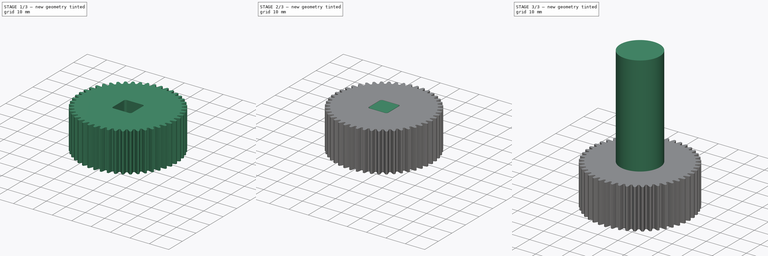
[diagram: build sequence overview — one tinted view per stage of 3, left to right]
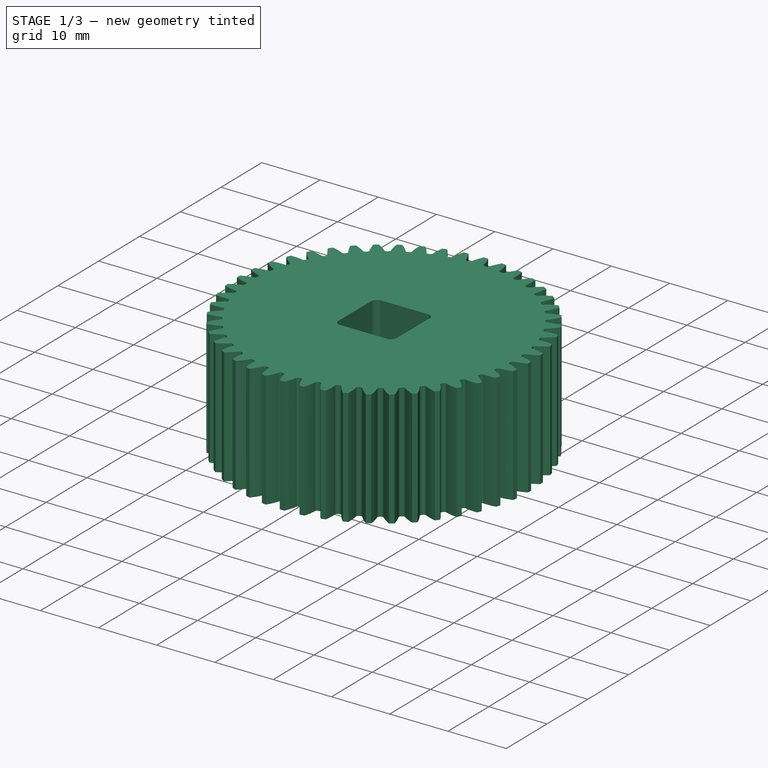
[diagram: stage 1 of 3 — iso view after this stage's code; geometry added in this stage tinted green]
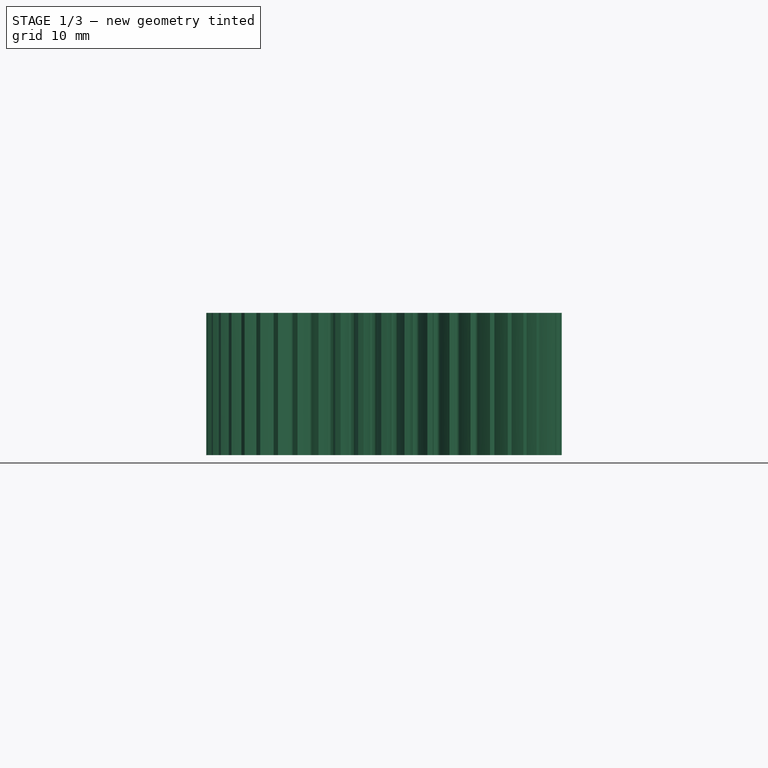
[diagram: stage 1 of 3 — front view after this stage's code; geometry added in this stage tinted green]
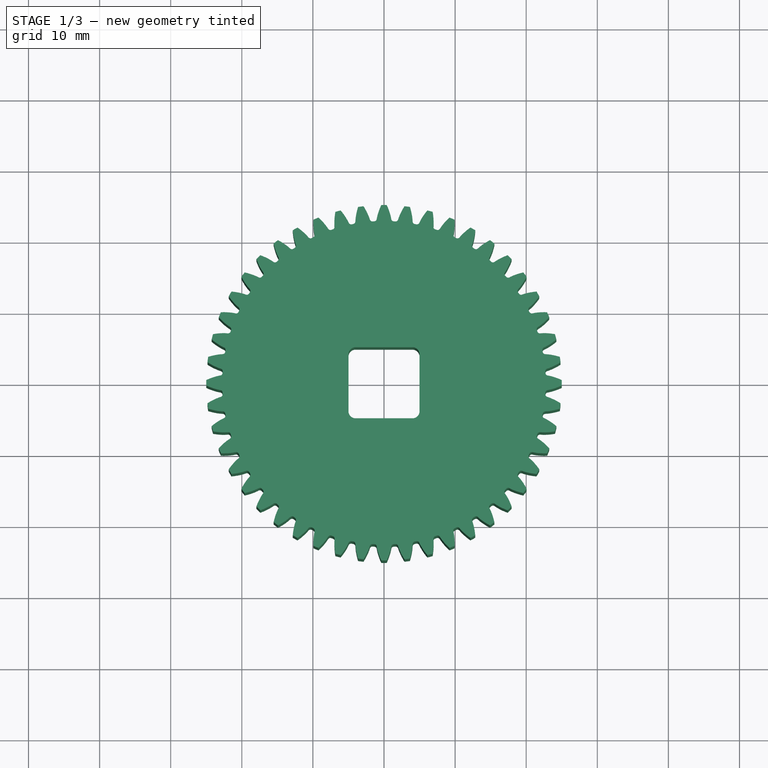
[diagram: stage 1 of 3 — top view after this stage's code; geometry added in this stage tinted green]
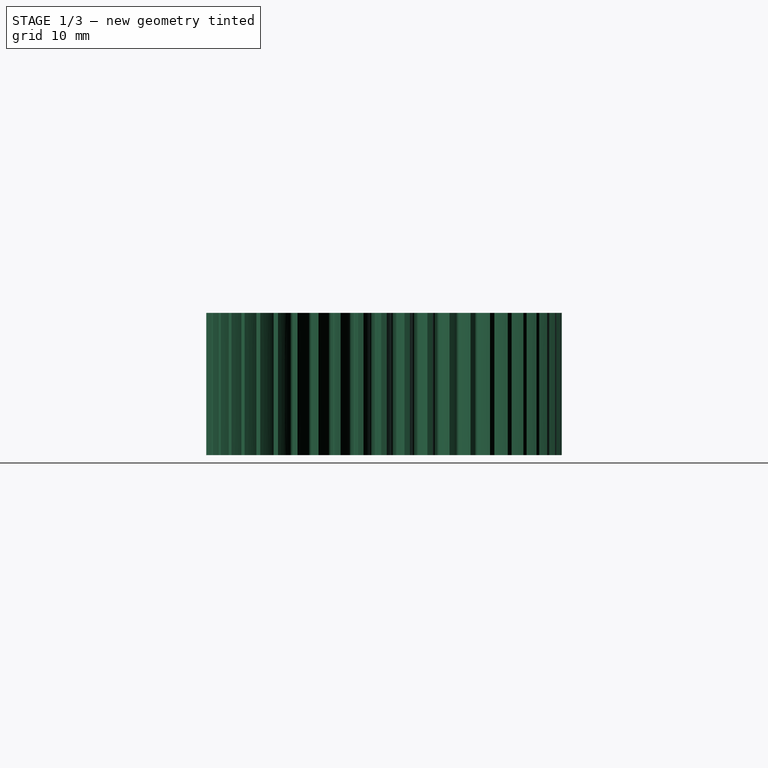
[diagram: stage 1 of 3 — right view after this stage's code; geometry added in this stage tinted green]
FCSTD DOCUMENT  (FreeCAD 1.1R40444 (Git))
Label: Gears
License: All rights reserved
LicenseURL: http://en.wikipedia.org/wiki/All_rights_reserved
objects: PartDesign::Pad×4, Sketcher::SketchObject×4, PartDesign::Body×3, App::Point×3, Part::Part2DObjectPython×2, PartDesign::ShapeBinder×2, PartDesign::Pocket×1
note: 30 computed .brp shape members not serialized (recipe doc carries the construction recipe); baked Part::Feature solids carry a one-line shape summary decoded from their .brp
EXTERNAL_REF file=Configuration.FCStd obj=Spreadsheet

FEATURE [PartDesign::Body] Body  label="MainGear"
  AllowCompound = false
  Group = -> [InvoluteGear,Pad]
  Origin = -> Origin
  Tip = -> Pad
FEATURE [PartDesign::Pad] Pad001
  Direction = (0,0,1)
  Length = 20
  Length2 = 10
  Profile = -> InvoluteGear002
  ReferenceAxis = -> InvoluteGear002 [N_Axis]
  Refine = true
  Suppressed = false
  Type = 0
  expr: Length = Configuration#<<Spreadsheet>>.gear_height
FEATURE [Sketcher::SketchObject] Sketch  label="ShaftMountInterface"
  ArcFitTolerance = 0
  ExternalTypes = [0]
  FullyConstrained = true
  MakeInternals = false
  expr: Constraints[26] = 1
  sketch-geometry (13):
    g0: LineSegment StartX=-4 StartY=-5 StartZ=0 EndX=4 EndY=-5 EndZ=0
    g1: LineSegment StartX=5 StartY=-4 StartZ=0 EndX=5 EndY=4 EndZ=0
    g2: LineSegment StartX=4 StartY=5 StartZ=0 EndX=-4 EndY=5 EndZ=0
    g3: LineSegment StartX=-5 StartY=4 StartZ=0 EndX=-5 EndY=-4 EndZ=0
    g4: GeomPoint [constr] X=0 Y=0 Z=0
    g5: ArcOfCircle CenterX=-4 CenterY=4 CenterZ=0 NormalX=0 NormalY=0 NormalZ=1 AngleXU=0 Radius=1 StartAngle=1.5708 EndAngle=3.14159
    g6: GeomPoint [constr] X=-5 Y=5 Z=0
    g7: ArcOfCircle CenterX=4 CenterY=4 CenterZ=0 NormalX=0 NormalY=0 NormalZ=1 AngleXU=0 Radius=1 StartAngle=0 EndAngle=1.5708
    g8: GeomPoint [constr] X=5 Y=5 Z=0
    g9: ArcOfCircle CenterX=4 CenterY=-4 CenterZ=0 NormalX=0 NormalY=0 NormalZ=1 AngleXU=0 Radius=1 StartAngle=4.71239 EndAngle=6.28319
    g10: GeomPoint [constr] X=5 Y=-5 Z=0
    g11: ArcOfCircle CenterX=-4 CenterY=-4 CenterZ=0 NormalX=0 NormalY=0 NormalZ=1 AngleXU=0 Radius=1 StartAngle=3.14159 EndAngle=4.71239
    g12: GeomPoint [constr] X=-5 Y=-5 Z=0
  constraints (28):
    c: Horizontal(g0)
    c: Horizontal(g2)
    c: Vertical(g1)
    c: Vertical(g3)
    c: Symmetric(g8,g12,g4)
    c: Coincident(g4,g-1)
    c: PointOnObject(g6,g2)
    c: PointOnObject(g6,g3)
    c: Tangent(g2,g5) = -1.5708
    c: Tangent(g3,g5) = -1.5708
    c: PointOnObject(g8,g1)
    c: PointOnObject(g8,g2)
    c: Tangent(g1,g7) = -1.5708
    c: Tangent(g2,g7) = -1.5708
    c: PointOnObject(g10,g0)
    c: PointOnObject(g10,g1)
    c: Tangent(g0,g9) = -1.5708
    c: Tangent(g1,g9) = -1.5708
    c: PointOnObject(g12,g0)
    c: PointOnObject(g12,g3)
    c: Tangent(g0,g11) = -1.5708
    c: Tangent(g3,g11) = -1.5708
    c: Distance(g4,g2) = 5
    c: Equal(g11,g5)
    c: Equal(g5,g7)
    c: Equal(g7,g9)
    c: Radius(g5) = 1
    c: Equal(g3,g2)
FEATURE [PartDesign::ShapeBinder] ShapeBinder
  Support = -> [Sketch]
  Suppressed = false
  TraceSupport = false
FEATURE [PartDesign::Pocket] Pocket
  BaseFeature = -> Pad001
  Direction = (0,0,-1)
  Length = 5
  Length2 = 5
  Profile = -> ShapeBinder
  Refine = true
  Reversed = true
  Suppressed = false
  Type = 1
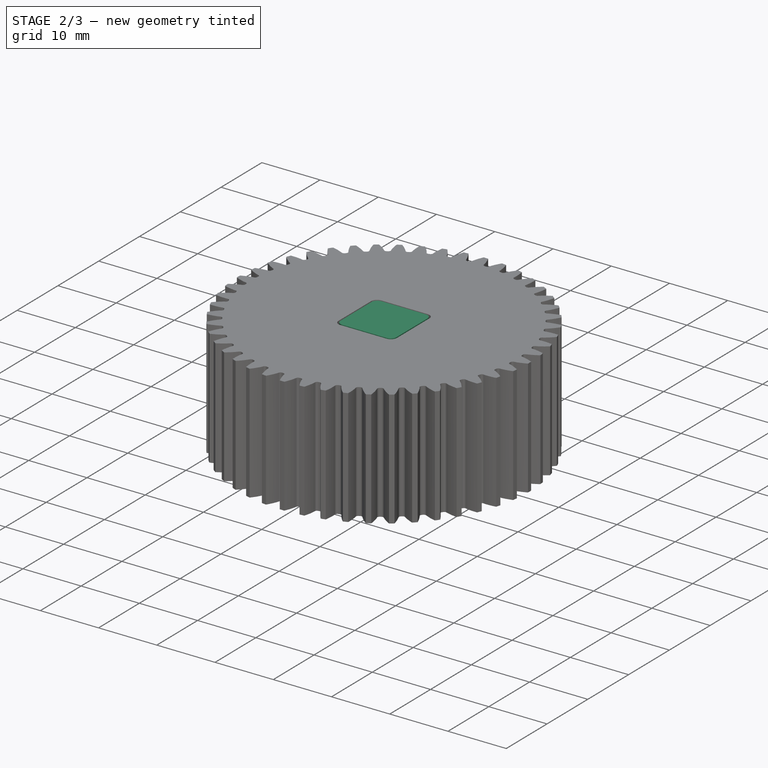
[diagram: stage 2 of 3 — iso view after this stage's code; geometry added in this stage tinted green]
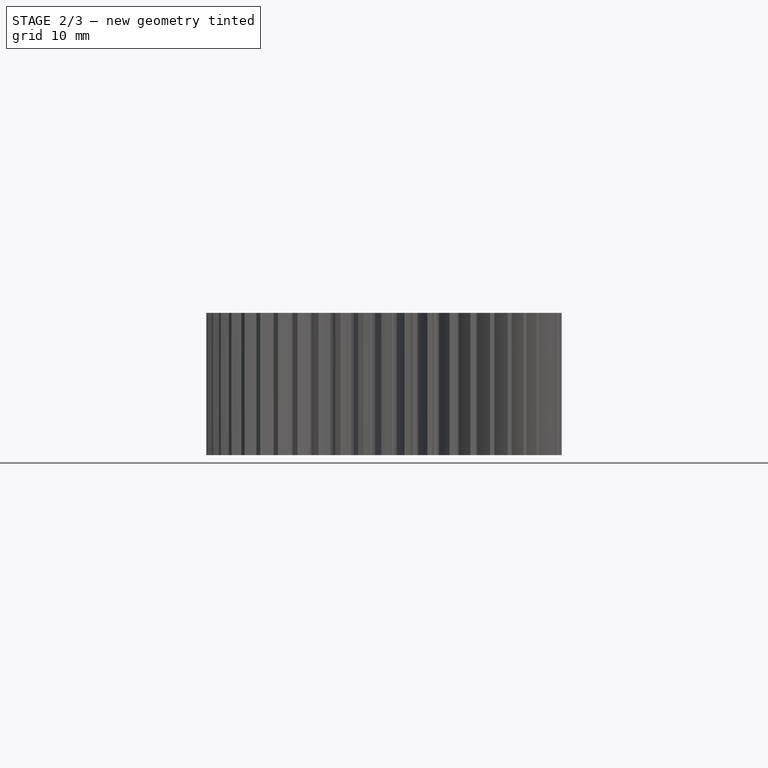
[diagram: stage 2 of 3 — front view after this stage's code; geometry added in this stage tinted green]
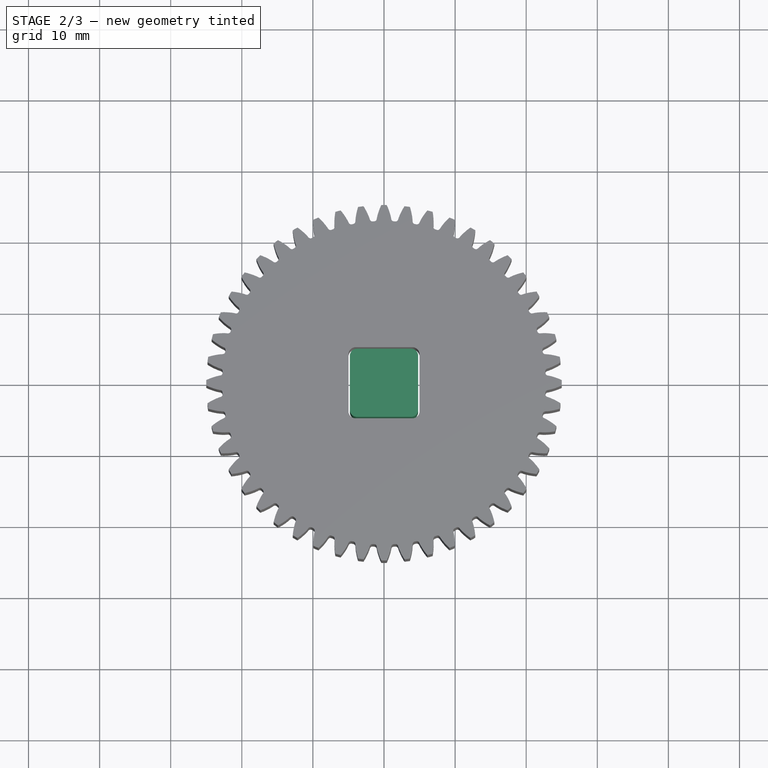
[diagram: stage 2 of 3 — top view after this stage's code; geometry added in this stage tinted green]
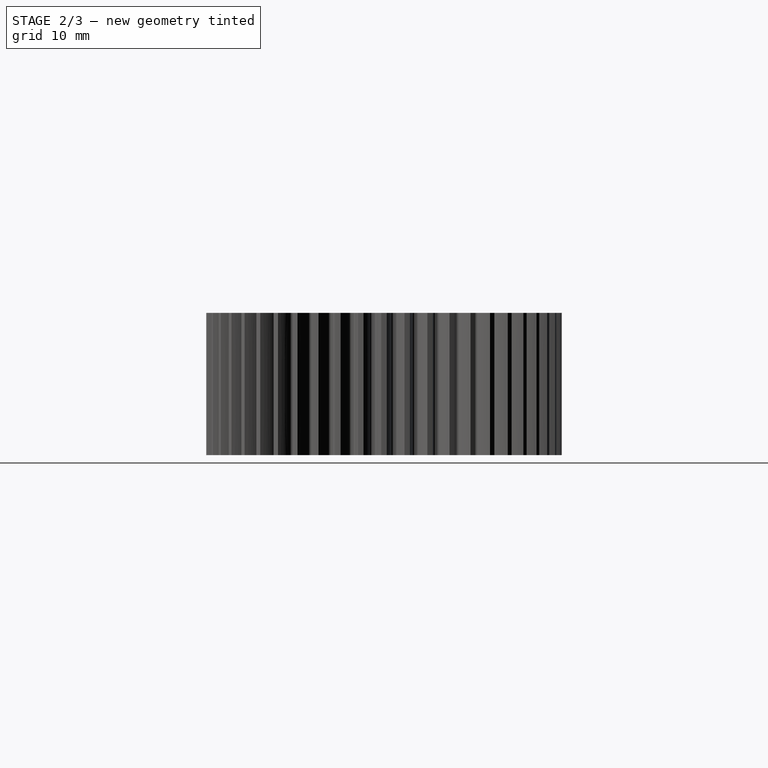
[diagram: stage 2 of 3 — right view after this stage's code; geometry added in this stage tinted green]
FEATURE [PartDesign::ShapeBinder] ShapeBinder001
  Support = -> [Sketch]
  Suppressed = false
  TraceSupport = false
FEATURE [Sketcher::SketchObject] Sketch001
  ArcFitTolerance = 0
  AttachmentSupport = -> [Pocket]
  ExternalGeometry = -> [ShapeBinder001]
  ExternalTypes = [0]
  FullyConstrained = true
  MakeInternals = false
  MapMode = 5
  Placement = pos=(0,0,0) rot=(1,0,0;3.14159rad)
  sketch-geometry (15):
    g0: LineSegment StartX=4.8 StartY=-3.8 StartZ=0 EndX=4.8 EndY=3.8 EndZ=0
    g1: LineSegment StartX=3.8 StartY=4.8 StartZ=0 EndX=-3.8 EndY=4.8 EndZ=0
    g2: LineSegment StartX=-4.8 StartY=3.8 StartZ=0 EndX=-4.8 EndY=-3.8 EndZ=0
    g3: LineSegment StartX=-3.8 StartY=-4.8 StartZ=0 EndX=3.8 EndY=-4.8 EndZ=0
    g4: GeomPoint [constr] X=0 Y=0 Z=0
    g5: ArcOfCircle CenterX=-3.8 CenterY=3.8 CenterZ=0 NormalX=0 NormalY=0 NormalZ=1 AngleXU=0 Radius=1 StartAngle=1.5708 EndAngle=3.14159
    g6: GeomPoint [constr] X=-4.8 Y=4.8 Z=0
    g7: ArcOfCircle CenterX=3.8 CenterY=3.8 CenterZ=0 NormalX=0 NormalY=0 NormalZ=1 AngleXU=0 Radius=1 StartAngle=0 EndAngle=1.5708
    g8: GeomPoint [constr] X=4.8 Y=4.8 Z=0
    g9: ArcOfCircle CenterX=3.8 CenterY=-3.8 CenterZ=0 NormalX=0 NormalY=0 NormalZ=1 AngleXU=0 Radius=1 StartAngle=4.71239 EndAngle=6.28319
    g10: GeomPoint [constr] X=4.8 Y=-4.8 Z=0
    g11: ArcOfCircle CenterX=-3.8 CenterY=-3.8 CenterZ=0 NormalX=0 NormalY=0 NormalZ=1 AngleXU=0 Radius=1 StartAngle=3.14159 EndAngle=4.71239
    g12: GeomPoint [constr] X=-4.8 Y=-4.8 Z=0
    g13: LineSegment [constr] StartX=-5e-16 StartY=5 StartZ=0 EndX=1e-16 EndY=4.8 EndZ=0
    g14: LineSegment [constr] StartX=4.8 StartY=0 StartZ=0 EndX=5 EndY=2e-16 EndZ=0
  constraints (33):
    c: Vertical(g0)
    c: Vertical(g2)
    c: Horizontal(g1)
    c: Horizontal(g3)
    c: Symmetric(g6,g10,g4)
    c: Coincident(g4,g-1)
    c: PointOnObject(g6,g1)
    c: PointOnObject(g6,g2)
    c: Tangent(g1,g5) = -1.5708
    c: Tangent(g2,g5) = -1.5708
    c: PointOnObject(g8,g0)
    c: PointOnObject(g8,g1)
    c: Tangent(g0,g7) = -1.5708
    c: Tangent(g1,g7) = -1.5708
    c: PointOnObject(g10,g0)
    c: PointOnObject(g10,g3)
    c: Tangent(g0,g9) = -1.5708
    c: Tangent(g3,g9) = -1.5708
    c: PointOnObject(g12,g2)
    c: PointOnObject(g12,g3)
    c: Tangent(g2,g11) = -1.5708
    c: Tangent(g3,g11) = -1.5708
    c: Equal(g11,g-6)
    c: Equal(g5,g-4)
    c: Equal(g7,g-10)
    c: Equal(g1,g0)
    c: Distance(g-9,g0) = 0.2
    c: Symmetric(g-3,g-3,g13)
    c: Symmetric(g1,g1,g13)
    c: PointOnObject(g14,g-1)
    c: Symmetric(g-9,g-9,g14)
    c: Equal(g14,g13)
    c: PointOnObject(g14,g0)
FEATURE [PartDesign::Pad] Pad002
  Direction = (0,0,1)
  Length = 20
  Length2 = 10
  Profile = -> Sketch001
  ReferenceAxis = -> Sketch001 [N_Axis]
  Refine = true
  Suppressed = false
  Type = 0
  expr: Length = Configuration#Spreadsheet.gear_height
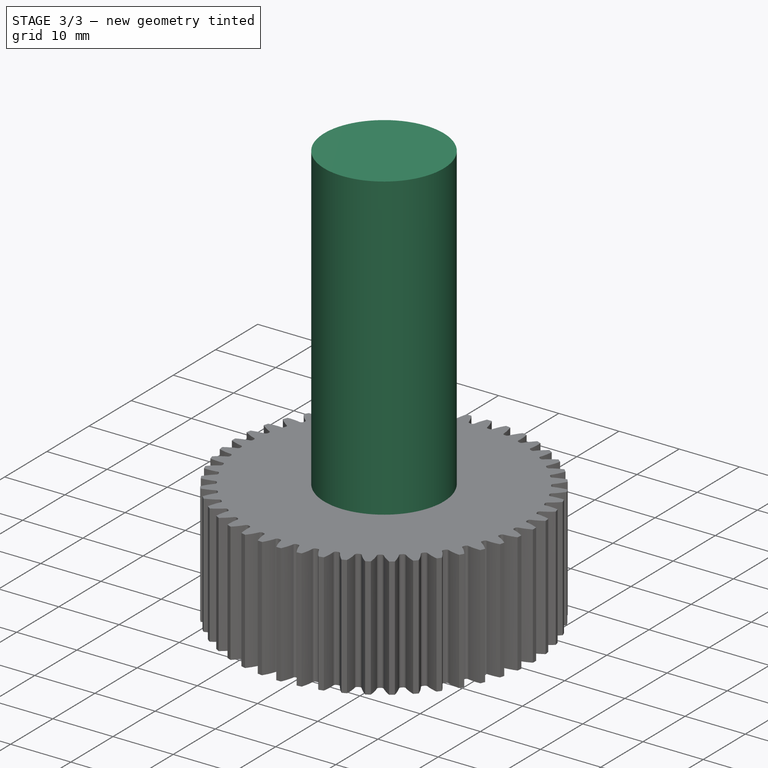
[diagram: stage 3 of 3 — iso view after this stage's code; geometry added in this stage tinted green]
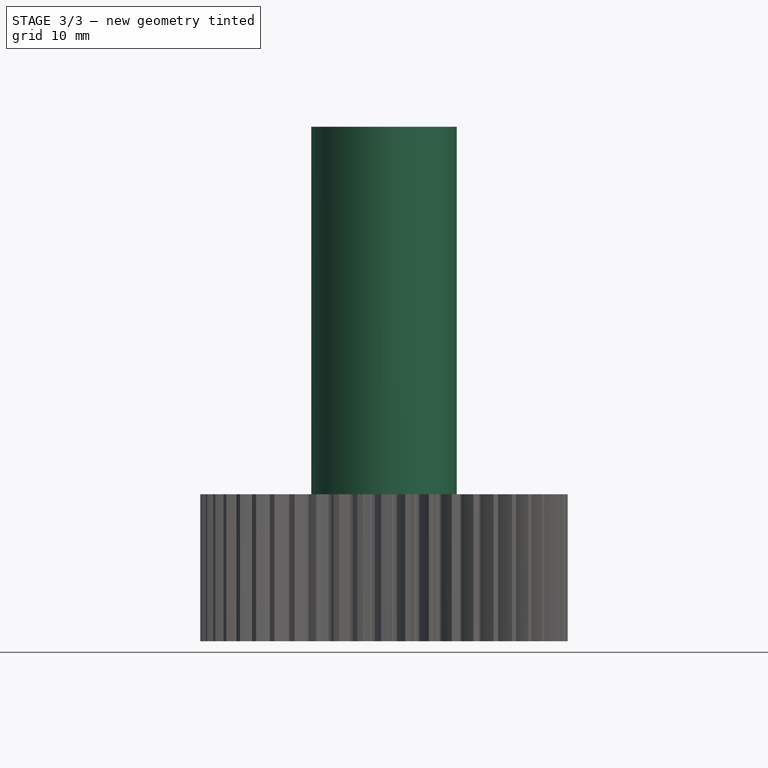
[diagram: stage 3 of 3 — front view after this stage's code; geometry added in this stage tinted green]
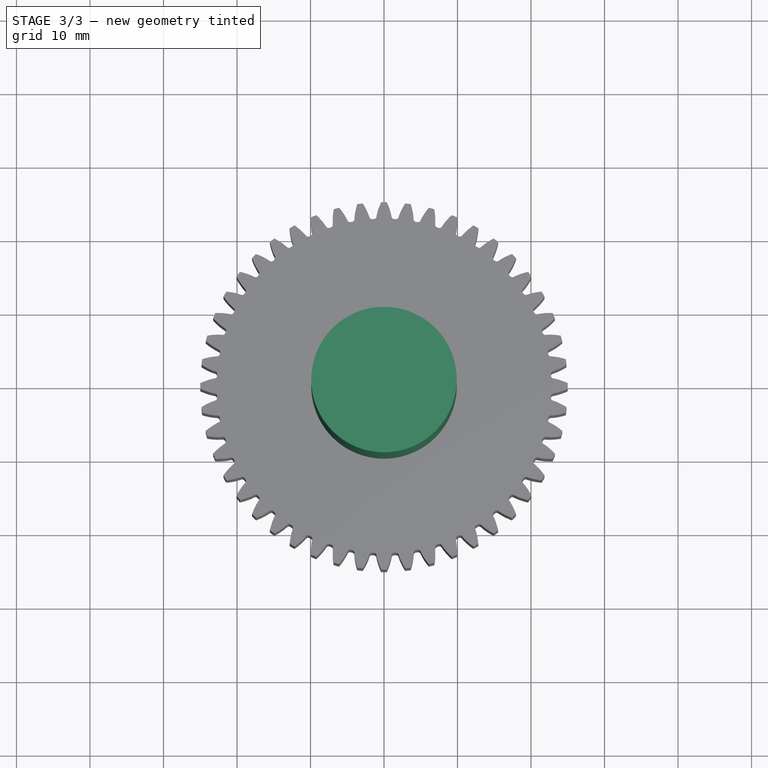
[diagram: stage 3 of 3 — top view after this stage's code; geometry added in this stage tinted green]
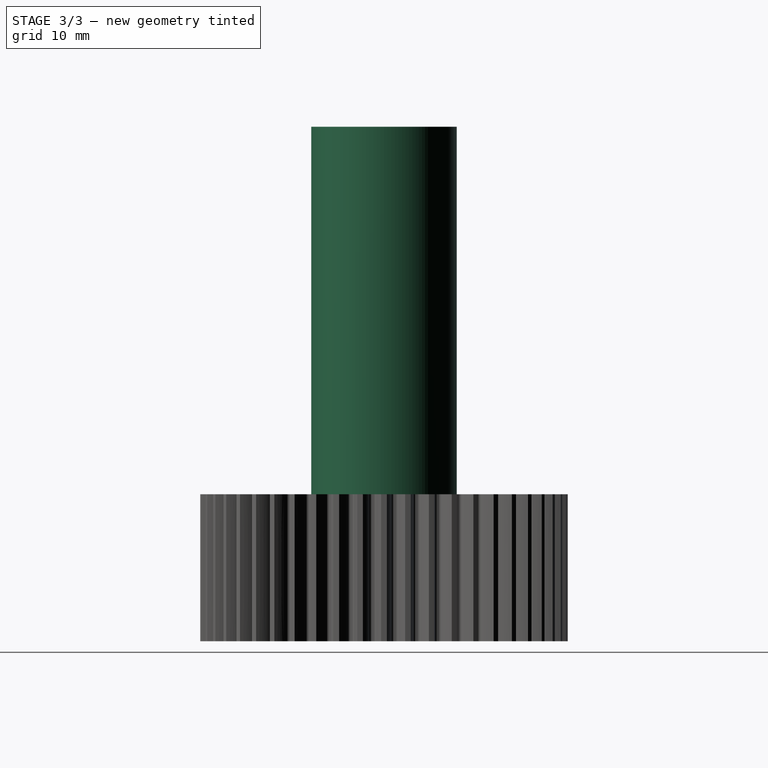
[diagram: stage 3 of 3 — right view after this stage's code; geometry added in this stage tinted green]
FEATURE [Part::Part2DObjectPython] InvoluteGear  # Draft 2D object (typed FeaturePython)
  AddendumCoefficient = 1
  DedendumCoefficient = 1.25
  ExternalGear = true
  HighPrecision = true
  Modules = 1
  NumberOfTeeth = 24
  PressureAngle = 20
  ProfileShiftCoefficient = 0
  RootFilletCoefficient = 0.38
  expr: Modules = Configuration#Spreadsheet.gear_module
  expr: NumberOfTeeth = Configuration#<<Spreadsheet>>.main_gear_teeth
FEATURE [Part::Part2DObjectPython] InvoluteGear002  # Draft 2D object (typed FeaturePython)
  AddendumCoefficient = 1
  DedendumCoefficient = 1.25
  ExternalGear = true
  HighPrecision = true
  Modules = 1
  NumberOfTeeth = 48
  PressureAngle = 20
  ProfileShiftCoefficient = 0
  RootFilletCoefficient = 0.38
  expr: Modules = Configuration#Spreadsheet.gear_module
  expr: NumberOfTeeth = Configuration#Spreadsheet.secondary_gear_teeth
FEATURE [PartDesign::Pad] Pad
  Direction = (0,0,1)
  Length = 20
  Length2 = 10
  Profile = -> InvoluteGear
  ReferenceAxis = -> InvoluteGear [N_Axis]
  Refine = true
  Suppressed = false
  Type = 0
  expr: Length = <<Configuration>>#<<Spreadsheet>>.gear_height
FEATURE [Sketcher::SketchObject] Sketch002
  ArcFitTolerance = 0
  AttachmentOffset = pos=(0,0,20) rot=(0,0,1;0rad)
  AttachmentSupport = -> [XY_Plane002]
  ExternalTypes = [0]
  FullyConstrained = true
  MakeInternals = false
  MapMode = 5
  Placement = pos=(0,0,20) rot=(0,0,1;0rad)
  expr: .AttachmentOffset.Base.z = Configuration#Spreadsheet.gear_height
  expr: Constraints[1] = Configuration#Spreadsheet.bearing_inner_diameter - 0.2
  sketch-geometry (1):
    g0: Circle CenterX=0 CenterY=0 CenterZ=0 NormalX=0 NormalY=0 NormalZ=1 AngleXU=0 Radius=3.9
  constraints (2):
    c: Coincident(g0,g-1)
    c: Diameter(g0) = 7.8
FEATURE [PartDesign::Pad] Pad003
  BaseFeature = -> Pad002
  Direction = (0,0,1)
  Length = 50
  Length2 = 10
  Profile = -> Sketch002
  ReferenceAxis = -> Sketch002 [N_Axis]
  Refine = true
  Suppressed = false
  Type = 0
FEATURE [PartDesign::Body] Body002  label="Shaft"
  AllowCompound = false
  Group = -> [ShapeBinder001,Sketch001,Pad002,Sketch002,Pad003]
  Origin = -> Origin002
  Tip = -> Pad003
FEATURE [App::Point] Origin003  label="Origin"
  Role = Origin
FEATURE [App::Point] Origin004  label="Origin"
  Role = Origin
FEATURE [App::Point] Origin005  label="Origin"
  Role = Origin
FEATURE [Sketcher::SketchObject] Sketch003
  ArcFitTolerance = 1e-06
  ExternalGeometry = -> [Pocket]
  ExternalTypes = [0,0]
  FullyConstrained = true
  MakeInternals = false
  sketch-geometry (1):
    g0: Circle CenterX=0 CenterY=0 CenterZ=0 NormalX=0 NormalY=0 NormalZ=1 AngleXU=0 Radius=25.0003
  constraints (2):
    c: Coincident(g0,g-1)
    c: PointOnObject(g-3,g0)
FEATURE [PartDesign::Body] Body001  label="SecondaryGear"
  AllowCompound = false
  Group = -> [InvoluteGear002,Pad001,ShapeBinder,Pocket,Sketch003]
  Origin = -> Origin001
  Tip = -> Pocket
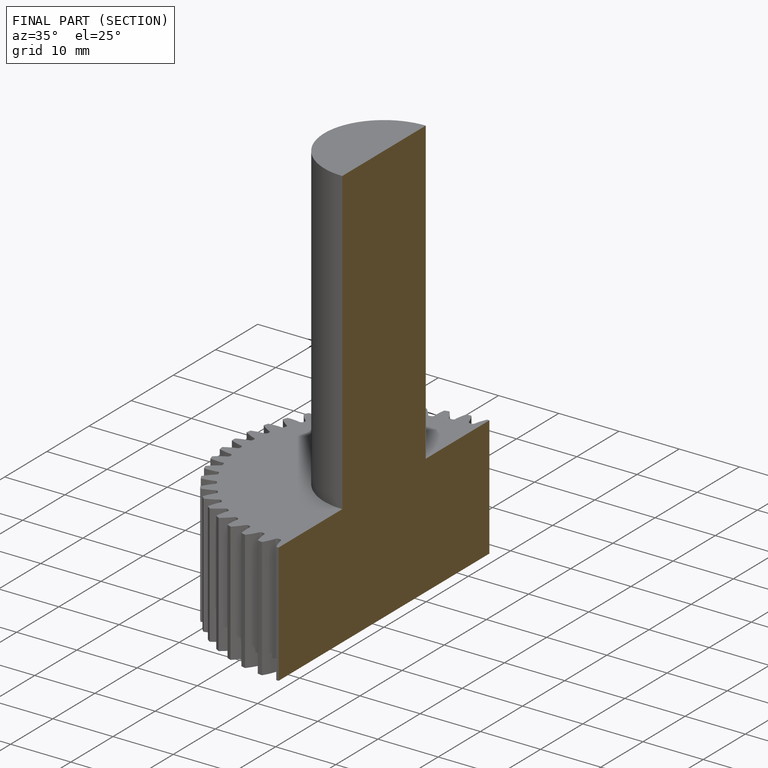
[diagram: finished part — half-section view (interior)]
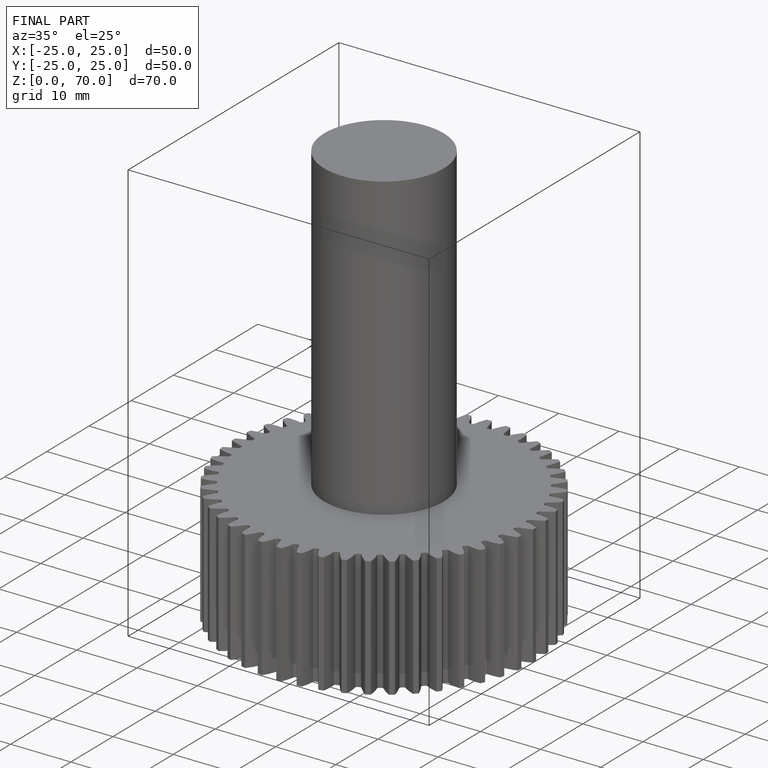
[diagram: finished part — iso view with bounding-box wireframe]
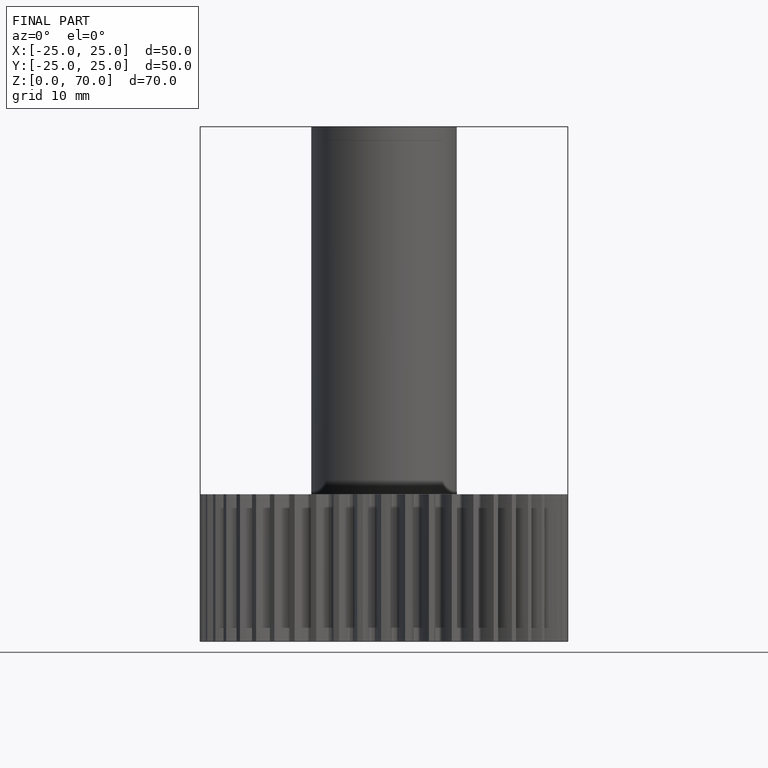
[diagram: finished part — front view with bounding-box wireframe]
